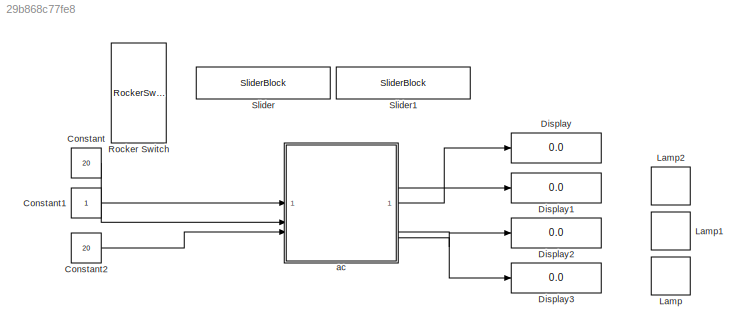
MODEL slx_29b868c77fe8
KIND model
CONFIG AbsTol = auto
CONFIG EnableMultiTasking = off
CONFIG FixedStep = auto
CONFIG MaxStep = auto
CONFIG MinStep = auto
CONFIG RelTol = 1e-3
CONFIG SampleTimeConstraint = Unconstrained
CONFIG SolverName = VariableStepAuto
CONFIG StartTime = 0.0
CONFIG StopTime = inf
BLOCK [Constant] Constant
  Value = 20
BLOCK [Constant] Constant1
BLOCK [Constant] Constant2
  Value = 20
BLOCK [Display] Display
  Decimation = 1
BLOCK [Display] Display1
  Decimation = 1
BLOCK [Display] Display2
  Decimation = 1
BLOCK [Display] Display3
  Decimation = 1
BLOCK [LampBlock] Lamp
  LabelPosition = Hide
BLOCK [LampBlock] Lamp1
  LabelPosition = Hide
BLOCK [LampBlock] Lamp2
  LabelPosition = Hide
BLOCK [RockerSwitchBlock] Rocker Switch
BLOCK [SliderBlock] Slider
BLOCK [SliderBlock] Slider1
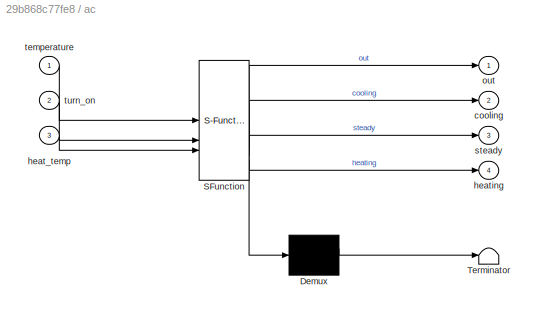
BLOCK [SubSystem] ac
  ErrorFcn = Stateflow.Translate.translate
  PermitHierarchicalResolution = ExplicitOnly
  SFBlockType = Chart
  TreatAsAtomicUnit = on
BLOCK [Demux] ac/ Demux 
  Outputs = 1
BLOCK [S-Function] ac/ SFunction 
  EnableBusSupport = on
  FunctionName = sf_sfun
  PortCounts = [3 5]
  SFcnIsStateOwnerBlock = off
  SFunctionDeploymentMode = off
  Tag = Stateflow S-Function 3
BLOCK [Terminator] ac/ Terminator 
BLOCK [Outport] ac/cooling
  Port = 2
BLOCK [Inport] ac/heat_temp
  Port = 3
BLOCK [Outport] ac/heating
  Port = 4
BLOCK [Outport] ac/out
BLOCK [Outport] ac/steady
  Port = 3
BLOCK [Inport] ac/temperature
BLOCK [Inport] ac/turn_on
  Port = 2
LINE Constant1:1 -> ac:2
LINE Constant2:1 -> ac:3
LINE Constant:1 -> ac:1
LINE ac:1 -> Display:1
LINE ac:2 -> Display1:1
LINE ac:3 -> Display2:1
LINE ac:4 -> Display3:1
CHART ac states=4 transitions=9
  STATE_LABEL 'on_off\nout=0'
  STATE_LABEL 'steady\nout=heat_temp\nsteady=1\ncooling=0\nheating=0'
  STATE_LABEL 'heat_on\nout=heat_temp+1\nheating=1\nsteady=0\ncooling=0'
  STATE_LABEL 'cooler_on\nout=heat_temp-1\ncooling=1\nsteady=0\nheating=0'
CHART  states=0 transitions=0
